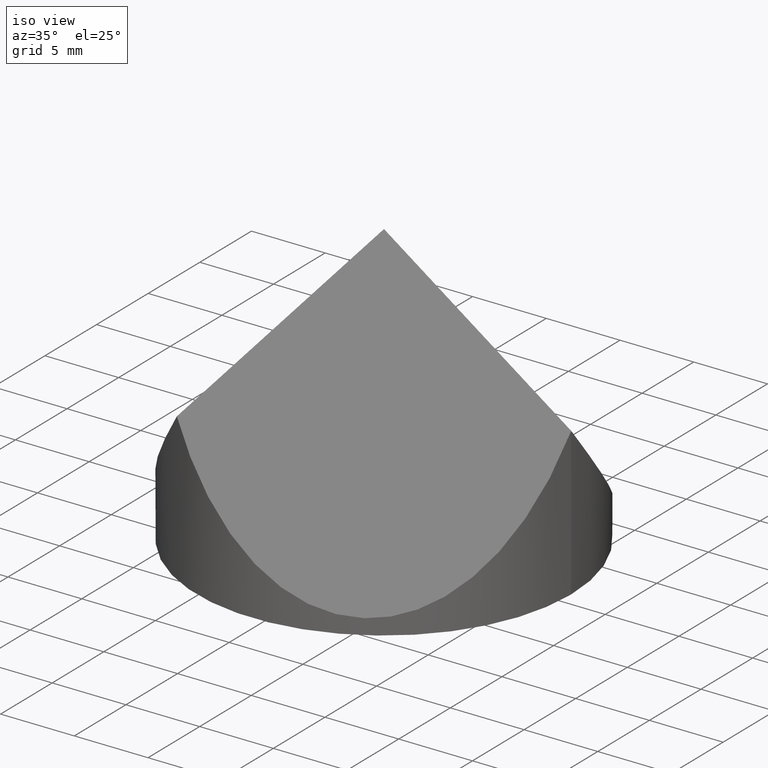
[diagram: clean part render]
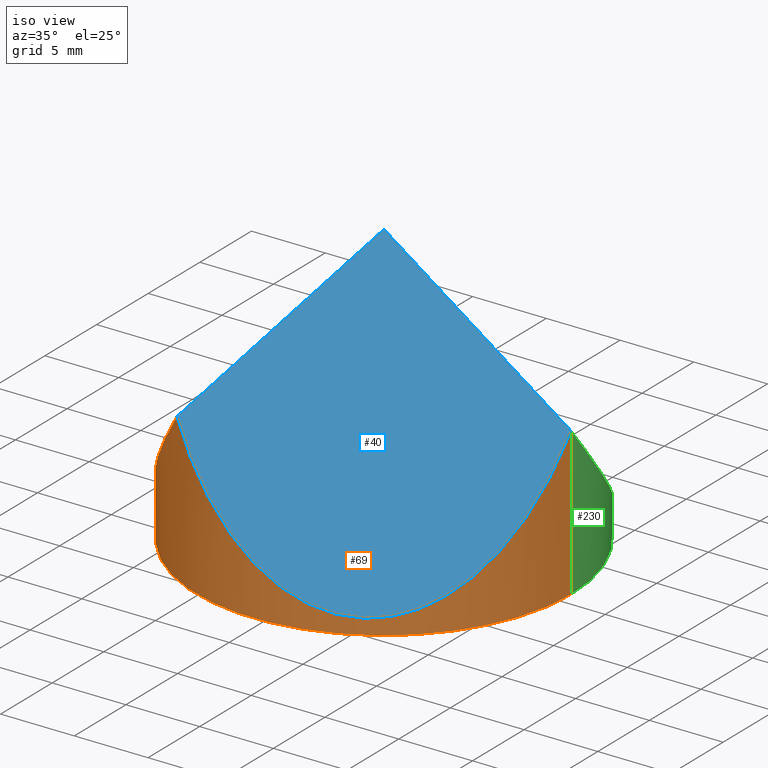
[diagram: same view with three faces highlighted in distinct colors, each labeled with its STEP entity id]
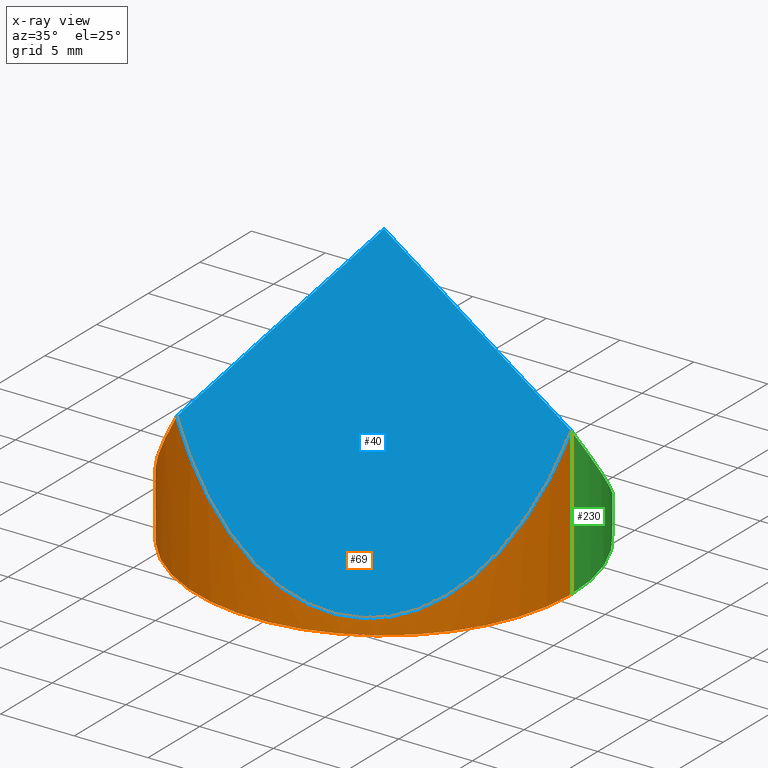
[diagram: x-ray of the same camera — body ghosted, the three highlighted faces saturated]
A machine part, iso view with three faces highlighted in distinct colors.
The next image is the same camera in x-ray (body ghosted, the three faces saturated) — at least one of them is partly hidden behind the body in this view.
Their STEP definitions:

[orange] entity #69 — the highlighted cylindrical surface (partial cylindrical patch) has radius 12.7 mm, axis along (-0, -0, -1).
#9 = VERTEX_POINT ( 'NONE', #49 ) ;
#11 = CARTESIAN_POINT ( 'NONE',  ( 3.174999999999990900, -16.49778394209356900, -3.445977579397118400 ) ) ;
#31 = AXIS2_PLACEMENT_3D ( 'NONE', #204, #166, #73 ) ;
#38 = VERTEX_POINT ( 'NONE', #254 ) ;
#42 = LINE ( 'NONE', #169, #214 ) ;
#49 = CARTESIAN_POINT ( 'NONE',  ( 12.69999999999999900, 1.555301434917138400E-015, 0.0000000000000000000 ) ) ;
#57 = CARTESIAN_POINT ( 'NONE',  ( -6.350000000000013000, -10.99852262806236200, 10.02160896824114600 ) ) ;
#67 = VERTEX_POINT ( 'NONE', #165 ) ;
#69 = ADVANCED_FACE ( 'NONE', ( #93 ), #270, .T. ) ;
#72 = DIRECTION ( 'NONE',  ( 0.0000000000000000000, 0.0000000000000000000, 1.000000000000000000 ) ) ;
#73 = DIRECTION ( 'NONE',  ( -1.000000000000000000, 0.0000000000000000000, 0.0000000000000000000 ) ) ;
#87 = CIRCLE ( 'NONE', #229, 12.69999999999999900 ) ;
#93 = FACE_OUTER_BOUND ( 'NONE', #279, .T. ) ;
#96 = DIRECTION ( 'NONE',  ( 1.000000000000000000, 0.0000000000000000000, 0.0000000000000000000 ) ) ;
#99 = CARTESIAN_POINT ( 'NONE',  ( -12.69999999999999900, 0.0000000000000000000, 1.043217936482335100 ) ) ;
#105 = EDGE_CURVE ( 'NONE', #38, #67, #142, .T. ) ;
#128 = CARTESIAN_POINT ( 'NONE',  ( -12.69999999999999900, -4.648522628062364600, 1.043217936482331700 ) ) ;
#132 = ORIENTED_EDGE ( 'NONE', *, *, #302, .T. ) ;
#137 = ORIENTED_EDGE ( 'NONE', *, *, #265, .T. ) ;
#142 =( BOUNDED_CURVE ( )  B_SPLINE_CURVE ( 3, ( #281, #187, #11, #253 ),
 .UNSPECIFIED., .F., .T. ) 
 B_SPLINE_CURVE_WITH_KNOTS ( ( 4, 4 ),
 ( 5.235987755982986200, 7.330382858376182800 ),
 .UNSPECIFIED. ) 
 CURVE ( )  GEOMETRIC_REPRESENTATION_ITEM ( )  RATIONAL_B_SPLINE_CURVE ( ( 1.000000000000000000, 0.6666666666666663000, 0.6666666666666663000, 1.000000000000000000 ) ) 
 REPRESENTATION_ITEM ( '' )  );
#149 = EDGE_CURVE ( 'NONE', #235, #9, #87, .T. ) ;
#151 = DIRECTION ( 'NONE',  ( -0.0000000000000000000, -0.0000000000000000000, -1.000000000000000000 ) ) ;
#152 = CARTESIAN_POINT ( 'NONE',  ( -12.69999999999999900, 0.0000000000000000000, 1.043217936482335100 ) ) ;
#156 = LINE ( 'NONE', #311, #286 ) ;
#165 = CARTESIAN_POINT ( 'NONE',  ( -6.350000000000013000, -10.99852262806236200, 10.02160896824114600 ) ) ;
#166 = DIRECTION ( 'NONE',  ( -0.0000000000000000000, -0.0000000000000000000, -1.000000000000000000 ) ) ;
#169 = CARTESIAN_POINT ( 'NONE',  ( -12.69999999999999900, 0.0000000000000000000, 19.00000000000000000 ) ) ;
#187 = CARTESIAN_POINT ( 'NONE',  ( 12.70000000000000600, -10.99852262806238000, -3.445977579397086400 ) ) ;
#199 = ORIENTED_EDGE ( 'NONE', *, *, #149, .T. ) ;
#200 = ORIENTED_EDGE ( 'NONE', *, *, #266, .F. ) ;
#204 = CARTESIAN_POINT ( 'NONE',  ( 0.0000000000000000000, 0.0000000000000000000, 19.00000000000000000 ) ) ;
#208 = CARTESIAN_POINT ( 'NONE',  ( -12.69999999999999900, 0.0000000000000000000, 0.0000000000000000000 ) ) ;
#214 = VECTOR ( 'NONE', #257, 1000.000000000000000 ) ;
#220 = VERTEX_POINT ( 'NONE', #99 ) ;
#229 = AXIS2_PLACEMENT_3D ( 'NONE', #236, #72, #96 ) ;
#235 = VERTEX_POINT ( 'NONE', #208 ) ;
#236 = CARTESIAN_POINT ( 'NONE',  ( 0.0000000000000000000, 0.0000000000000000000, 0.0000000000000000000 ) ) ;
#253 = CARTESIAN_POINT ( 'NONE',  ( -6.350000000000013000, -10.99852262806236200, 10.02160896824114600 ) ) ;
#254 = CARTESIAN_POINT ( 'NONE',  ( 12.70000000000000600, 2.380270583351730600E-015, 10.02160896824120000 ) ) ;
#257 = DIRECTION ( 'NONE',  ( -0.0000000000000000000, -0.0000000000000000000, -1.000000000000000000 ) ) ;
#262 = ORIENTED_EDGE ( 'NONE', *, *, #105, .T. ) ;
#265 = EDGE_CURVE ( 'NONE', #220, #235, #42, .T. ) ;
#266 = EDGE_CURVE ( 'NONE', #38, #9, #156, .T. ) ;
#270 = CYLINDRICAL_SURFACE ( 'NONE', #31, 12.69999999999999900 ) ;
#278 =( BOUNDED_CURVE ( )  B_SPLINE_CURVE ( 3, ( #57, #285, #128, #152 ),
 .UNSPECIFIED., .F., .T. ) 
 B_SPLINE_CURVE_WITH_KNOTS ( ( 4, 4 ),
 ( 5.235987755982989700, 6.283185307179586200 ),
 .UNSPECIFIED. ) 
 CURVE ( )  GEOMETRIC_REPRESENTATION_ITEM ( )  RATIONAL_B_SPLINE_CURVE ( ( 1.000000000000000000, 0.9106836025229592100, 0.9106836025229592100, 1.000000000000000000 ) ) 
 REPRESENTATION_ITEM ( '' )  );
#279 = EDGE_LOOP ( 'NONE', ( #200, #262, #132, #137, #199 ) ) ;
#281 = CARTESIAN_POINT ( 'NONE',  ( 12.70000000000000600, 2.380270583351730600E-015, 10.02160896824120000 ) ) ;
#285 = CARTESIAN_POINT ( 'NONE',  ( -10.37573868596881800, -8.674261314031179300, 4.329537139216437700 ) ) ;
#286 = VECTOR ( 'NONE', #151, 1000.000000000000000 ) ;
#302 = EDGE_CURVE ( 'NONE', #67, #220, #278, .T. ) ;
#311 = CARTESIAN_POINT ( 'NONE',  ( 12.69999999999999900, 1.555301434917138400E-015, 19.00000000000000000 ) ) ;

[blue] entity #40 — the highlighted planar face has unit normal (-0.4082, 0.7071, -0.5774).
#7 = EDGE_CURVE ( 'NONE', #67, #47, #12, .T. ) ;
#11 = CARTESIAN_POINT ( 'NONE',  ( 3.174999999999990900, -16.49778394209356900, -3.445977579397118400 ) ) ;
#12 = LINE ( 'NONE', #14, #198 ) ;
#14 = CARTESIAN_POINT ( 'NONE',  ( -7.073520084914156000, -12.25169617543020500, 8.998609560100904400 ) ) ;
#18 = EDGE_LOOP ( 'NONE', ( #299, #144, #74 ) ) ;
#21 = DIRECTION ( 'NONE',  ( -0.8165531063768112200, -1.827950131834282300E-016, 0.5772703218305786900 ) ) ;
#35 = LINE ( 'NONE', #55, #161 ) ;
#38 = VERTEX_POINT ( 'NONE', #254 ) ;
#40 = ADVANCED_FACE ( 'NONE', ( #148 ), #181, .F. ) ;
#47 = VERTEX_POINT ( 'NONE', #306 ) ;
#55 = CARTESIAN_POINT ( 'NONE',  ( 9.816313587227853100, 1.734723475976807100E-015, 12.06025969476389300 ) ) ;
#67 = VERTEX_POINT ( 'NONE', #165 ) ;
#74 = ORIENTED_EDGE ( 'NONE', *, *, #105, .F. ) ;
#95 = CARTESIAN_POINT ( 'NONE',  ( 11.69134295108994500, 6.749999999999978700, 19.00000000000000000 ) ) ;
#105 = EDGE_CURVE ( 'NONE', #38, #67, #142, .T. ) ;
#142 =( BOUNDED_CURVE ( )  B_SPLINE_CURVE ( 3, ( #281, #187, #11, #253 ),
 .UNSPECIFIED., .F., .T. ) 
 B_SPLINE_CURVE_WITH_KNOTS ( ( 4, 4 ),
 ( 5.235987755982986200, 7.330382858376182800 ),
 .UNSPECIFIED. ) 
 CURVE ( )  GEOMETRIC_REPRESENTATION_ITEM ( )  RATIONAL_B_SPLINE_CURVE ( ( 1.000000000000000000, 0.6666666666666663000, 0.6666666666666663000, 1.000000000000000000 ) ) 
 REPRESENTATION_ITEM ( '' )  );
#144 = ORIENTED_EDGE ( 'NONE', *, *, #7, .F. ) ;
#148 = FACE_OUTER_BOUND ( 'NONE', #18, .T. ) ;
#161 = VECTOR ( 'NONE', #21, 1000.000000000000200 ) ;
#165 = CARTESIAN_POINT ( 'NONE',  ( -6.350000000000013000, -10.99852262806236200, 10.02160896824114600 ) ) ;
#181 = PLANE ( 'NONE',  #190 ) ;
#182 = DIRECTION ( 'NONE',  ( 0.4082765531884056700, 0.7071557336614138200, 0.5772703218305810200 ) ) ;
#186 = DIRECTION ( 'NONE',  ( -0.4082200218682780500, 0.7070578185427394100, -0.5774302165486712200 ) ) ;
#187 = CARTESIAN_POINT ( 'NONE',  ( 12.70000000000000600, -10.99852262806238000, -3.445977579397086400 ) ) ;
#190 = AXIS2_PLACEMENT_3D ( 'NONE', #95, #186, #207 ) ;
#198 = VECTOR ( 'NONE', #182, 1000.000000000000000 ) ;
#207 = DIRECTION ( 'NONE',  ( 0.0000000000000000000, 0.6325343505460013800, 0.7745323075116675700 ) ) ;
#251 = EDGE_CURVE ( 'NONE', #38, #47, #35, .T. ) ;
#253 = CARTESIAN_POINT ( 'NONE',  ( -6.350000000000013000, -10.99852262806236200, 10.02160896824114600 ) ) ;
#254 = CARTESIAN_POINT ( 'NONE',  ( 12.70000000000000600, 2.380270583351730600E-015, 10.02160896824120000 ) ) ;
#281 = CARTESIAN_POINT ( 'NONE',  ( 12.70000000000000600, 2.380270583351730600E-015, 10.02160896824120000 ) ) ;
#299 = ORIENTED_EDGE ( 'NONE', *, *, #251, .T. ) ;
#306 = CARTESIAN_POINT ( 'NONE',  ( 2.602085213965210600E-015, 2.022940028949129900E-016, 19.00000000000000000 ) ) ;

[green] entity #230 — the highlighted cylindrical surface (partial cylindrical patch) has radius 12.7 mm, axis along (-0, -0, -1).
#5 = EDGE_LOOP ( 'NONE', ( #205, #292, #268, #84, #250 ) ) ;
#9 = VERTEX_POINT ( 'NONE', #49 ) ;
#16 = CARTESIAN_POINT ( 'NONE',  ( -6.350000000000017400, 10.99852262806236800, 10.02160896824114100 ) ) ;
#38 = VERTEX_POINT ( 'NONE', #254 ) ;
#42 = LINE ( 'NONE', #169, #214 ) ;
#49 = CARTESIAN_POINT ( 'NONE',  ( 12.69999999999999900, 1.555301434917138400E-015, 0.0000000000000000000 ) ) ;
#66 =( BOUNDED_CURVE ( )  B_SPLINE_CURVE ( 3, ( #150, #191, #291, #81 ),
 .UNSPECIFIED., .F., .F. ) 
 B_SPLINE_CURVE_WITH_KNOTS ( ( 4, 4 ),
 ( 0.0000000000000000000, 1.047197551196596500 ),
 .UNSPECIFIED. ) 
 CURVE ( )  GEOMETRIC_REPRESENTATION_ITEM ( )  RATIONAL_B_SPLINE_CURVE ( ( 1.000000000000000000, 0.9106836025229592100, 0.9106836025229592100, 1.000000000000000000 ) ) 
 REPRESENTATION_ITEM ( '' )  );
#78 = CIRCLE ( 'NONE', #136, 12.69999999999999900 ) ;
#81 = CARTESIAN_POINT ( 'NONE',  ( -6.350000000000017400, 10.99852262806236800, 10.02160896824114100 ) ) ;
#84 = ORIENTED_EDGE ( 'NONE', *, *, #265, .F. ) ;
#99 = CARTESIAN_POINT ( 'NONE',  ( -12.69999999999999900, 0.0000000000000000000, 1.043217936482335100 ) ) ;
#123 = CARTESIAN_POINT ( 'NONE',  ( 12.70000000000000100, 10.99852262806238200, -3.445977579397081900 ) ) ;
#126 =( BOUNDED_CURVE ( )  B_SPLINE_CURVE ( 3, ( #275, #123, #185, #280 ),
 .UNSPECIFIED., .F., .T. ) 
 B_SPLINE_CURVE_WITH_KNOTS ( ( 4, 4 ),
 ( 5.235987755982986200, 7.330382858376182800 ),
 .UNSPECIFIED. ) 
 CURVE ( )  GEOMETRIC_REPRESENTATION_ITEM ( )  RATIONAL_B_SPLINE_CURVE ( ( 1.000000000000000000, 0.6666666666666663000, 0.6666666666666663000, 1.000000000000000000 ) ) 
 REPRESENTATION_ITEM ( '' )  );
#134 = EDGE_CURVE ( 'NONE', #9, #235, #78, .T. ) ;
#136 = AXIS2_PLACEMENT_3D ( 'NONE', #305, #184, #143 ) ;
#143 = DIRECTION ( 'NONE',  ( 1.000000000000000000, 0.0000000000000000000, 0.0000000000000000000 ) ) ;
#150 = CARTESIAN_POINT ( 'NONE',  ( -12.69999999999999900, 0.0000000000000000000, 1.043217936482335100 ) ) ;
#151 = DIRECTION ( 'NONE',  ( -0.0000000000000000000, -0.0000000000000000000, -1.000000000000000000 ) ) ;
#156 = LINE ( 'NONE', #311, #286 ) ;
#169 = CARTESIAN_POINT ( 'NONE',  ( -12.69999999999999900, 0.0000000000000000000, 19.00000000000000000 ) ) ;
#175 = VERTEX_POINT ( 'NONE', #16 ) ;
#184 = DIRECTION ( 'NONE',  ( 0.0000000000000000000, 0.0000000000000000000, 1.000000000000000000 ) ) ;
#185 = CARTESIAN_POINT ( 'NONE',  ( 3.174999999999988300, 16.49778394209356900, -3.445977579397109000 ) ) ;
#191 = CARTESIAN_POINT ( 'NONE',  ( -12.69999999999999900, 4.648522628062364600, 1.043217936482331700 ) ) ;
#195 = AXIS2_PLACEMENT_3D ( 'NONE', #237, #277, #304 ) ;
#205 = ORIENTED_EDGE ( 'NONE', *, *, #225, .F. ) ;
#208 = CARTESIAN_POINT ( 'NONE',  ( -12.69999999999999900, 0.0000000000000000000, 0.0000000000000000000 ) ) ;
#210 = FACE_OUTER_BOUND ( 'NONE', #5, .T. ) ;
#214 = VECTOR ( 'NONE', #257, 1000.000000000000000 ) ;
#220 = VERTEX_POINT ( 'NONE', #99 ) ;
#225 = EDGE_CURVE ( 'NONE', #38, #175, #126, .T. ) ;
#230 = ADVANCED_FACE ( 'NONE', ( #210 ), #273, .T. ) ;
#235 = VERTEX_POINT ( 'NONE', #208 ) ;
#237 = CARTESIAN_POINT ( 'NONE',  ( 0.0000000000000000000, 0.0000000000000000000, 19.00000000000000000 ) ) ;
#242 = EDGE_CURVE ( 'NONE', #220, #175, #66, .T. ) ;
#250 = ORIENTED_EDGE ( 'NONE', *, *, #242, .T. ) ;
#254 = CARTESIAN_POINT ( 'NONE',  ( 12.70000000000000600, 2.380270583351730600E-015, 10.02160896824120000 ) ) ;
#257 = DIRECTION ( 'NONE',  ( -0.0000000000000000000, -0.0000000000000000000, -1.000000000000000000 ) ) ;
#265 = EDGE_CURVE ( 'NONE', #220, #235, #42, .T. ) ;
#266 = EDGE_CURVE ( 'NONE', #38, #9, #156, .T. ) ;
#268 = ORIENTED_EDGE ( 'NONE', *, *, #134, .T. ) ;
#273 = CYLINDRICAL_SURFACE ( 'NONE', #195, 12.69999999999999900 ) ;
#275 = CARTESIAN_POINT ( 'NONE',  ( 12.70000000000000600, 2.380270583351730600E-015, 10.02160896824120000 ) ) ;
#277 = DIRECTION ( 'NONE',  ( -0.0000000000000000000, -0.0000000000000000000, -1.000000000000000000 ) ) ;
#280 = CARTESIAN_POINT ( 'NONE',  ( -6.350000000000017400, 10.99852262806236800, 10.02160896824114100 ) ) ;
#286 = VECTOR ( 'NONE', #151, 1000.000000000000000 ) ;
#291 = CARTESIAN_POINT ( 'NONE',  ( -10.37573868596882300, 8.674261314031175700, 4.329537139216434100 ) ) ;
#292 = ORIENTED_EDGE ( 'NONE', *, *, #266, .T. ) ;
#304 = DIRECTION ( 'NONE',  ( -1.000000000000000000, 0.0000000000000000000, 0.0000000000000000000 ) ) ;
#305 = CARTESIAN_POINT ( 'NONE',  ( 0.0000000000000000000, 0.0000000000000000000, 0.0000000000000000000 ) ) ;
#311 = CARTESIAN_POINT ( 'NONE',  ( 12.69999999999999900, 1.555301434917138400E-015, 19.00000000000000000 ) ) ;